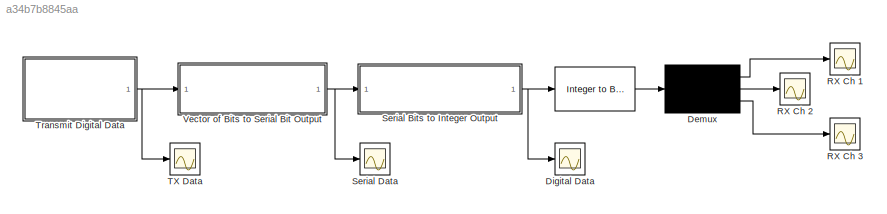
MODEL slx_a34b7b8845aa
KIND model
BLOCK [Reference]    REF=commutil2/Integer to Bit
Converter
  Ports = [1, 1]
  SourceBlock = commutil2/Integer to Bit\nConverter
  SourceType = Integer to Bit Converter
  bitOrder = LSB first
  nbits = 3
  outDtype = Inherit via internal rule
  signedInputValues = Unsigned
BLOCK [Demux] Demux
  Outputs = 3
  Ports = [1, 3]
BLOCK [Scope] Digital Data
  Floating = off
  NumInputPorts = 1
  Ports = [1]
  SaveName = ScopeData6
  ShowLegends = off
BLOCK [Scope] RX Ch 1
  Floating = off
  NumInputPorts = 1
  Ports = [1]
  ShowLegends = off
BLOCK [Scope] RX Ch 2
  Floating = off
  NumInputPorts = 1
  Ports = [1]
  SaveName = ScopeData1
  ShowLegends = off
BLOCK [Scope] RX Ch 3
  Floating = off
  NumInputPorts = 1
  Ports = [1]
  SaveName = ScopeData8
  ShowLegends = off
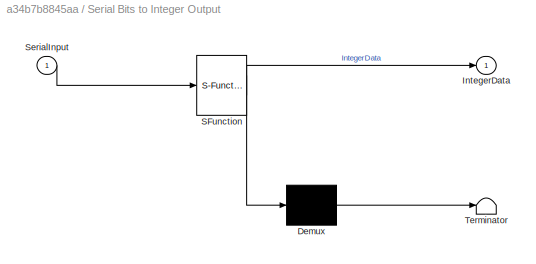
BLOCK [SubSystem] Serial Bits to Integer Output
  ErrorFcn = Stateflow.Translate.translate
  PermitHierarchicalResolution = ExplicitOnly
  Ports = [1, 1]
  RequestExecContextInheritance = off
  SFBlockType = MATLAB Function
  TreatAsAtomicUnit = on
BLOCK [Demux] Serial Bits to Integer Output/ Demux 
  Outputs = 1
  Ports = [1, 1]
BLOCK [S-Function] Serial Bits to Integer Output/ SFunction 
  EnableBusSupport = on
  FunctionName = sf_sfun
  PortCounts = [1 2]
  Ports = [1, 2]
  Tag = Stateflow S-Function Fig53 1
BLOCK [Terminator] Serial Bits to Integer Output/ Terminator 
BLOCK [Outport] Serial Bits to Integer Output/IntegerData
  IconDisplay = Port number
BLOCK [Inport] Serial Bits to Integer Output/SerialInput
  IconDisplay = Port number
BLOCK [Scope] Serial Data
  Floating = off
  NumInputPorts = 1
  Ports = [1]
  SaveName = ScopeData3
  ShowLegends = off
BLOCK [Scope] TX Data
  Floating = off
  NumInputPorts = 1
  Ports = [1]
  SaveName = ScopeData2
  ShowLegends = off
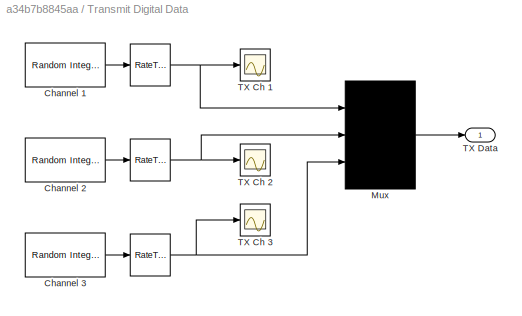
BLOCK [SubSystem] Transmit Digital Data
  Ports = [0, 1]
  RequestExecContextInheritance = off
BLOCK [RateTransition] Transmit Digital Data/ 
  OutPortSampleTime = 1e-3
BLOCK [RateTransition] Transmit Digital Data/  
  OutPortSampleTime = 1e-3
BLOCK [RateTransition] Transmit Digital Data/    
  OutPortSampleTime = 1e-3
BLOCK [Reference] Transmit Digital Data/Channel 1  REF=commrandsrc2/Random Integer
Generator
  Ports = [0, 1]
  SourceBlock = commrandsrc2/Random Integer\nGenerator
  SourceType = Random Integer Generator
  Ts = 4e-3
  frameBased = off
  mul = 2
  orient = on
  outDataType = double
  sampPerFrame = 1
  seed = 37
BLOCK [Reference] Transmit Digital Data/Channel 2  REF=commrandsrc2/Random Integer
Generator
  Ports = [0, 1]
  SourceBlock = commrandsrc2/Random Integer\nGenerator
  SourceType = Random Integer Generator
  Ts = 4e-3
  frameBased = off
  mul = 2
  orient = on
  outDataType = double
  sampPerFrame = 1
  seed = 59
BLOCK [Reference] Transmit Digital Data/Channel 3  REF=commrandsrc2/Random Integer
Generator
  Ports = [0, 1]
  SourceBlock = commrandsrc2/Random Integer\nGenerator
  SourceType = Random Integer Generator
  Ts = 2e-3
  frameBased = off
  mul = 2
  orient = on
  outDataType = double
  sampPerFrame = 1
  seed = 42
BLOCK [Mux] Transmit Digital Data/Mux
  DisplayOption = signals
  Inputs = 3
  Ports = [3, 1]
BLOCK [Scope] Transmit Digital Data/TX Ch 1
  Floating = off
  NumInputPorts = 1
  Ports = [1]
  SaveName = ScopeData4
  ShowLegends = off
BLOCK [Scope] Transmit Digital Data/TX Ch 2
  Floating = off
  NumInputPorts = 1
  Ports = [1]
  SaveName = ScopeData5
  ShowLegends = off
BLOCK [Scope] Transmit Digital Data/TX Ch 3
  Floating = off
  NumInputPorts = 1
  Ports = [1]
  SaveName = ScopeData7
  ShowLegends = off
BLOCK [Outport] Transmit Digital Data/TX Data
  IconDisplay = Port number
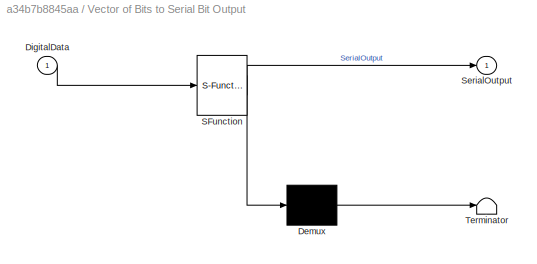
BLOCK [SubSystem] Vector of Bits to Serial Bit Output
  ErrorFcn = Stateflow.Translate.translate
  PermitHierarchicalResolution = ExplicitOnly
  Ports = [1, 1]
  RequestExecContextInheritance = off
  SFBlockType = MATLAB Function
  TreatAsAtomicUnit = on
BLOCK [Demux] Vector of Bits to Serial Bit Output/ Demux 
  Outputs = 1
  Ports = [1, 1]
BLOCK [S-Function] Vector of Bits to Serial Bit Output/ SFunction 
  EnableBusSupport = on
  FunctionName = sf_sfun
  PortCounts = [1 2]
  Ports = [1, 2]
  Tag = Stateflow S-Function Fig53 2
BLOCK [Terminator] Vector of Bits to Serial Bit Output/ Terminator 
BLOCK [Inport] Vector of Bits to Serial Bit Output/DigitalData
  IconDisplay = Port number
BLOCK [Outport] Vector of Bits to Serial Bit Output/SerialOutput
  IconDisplay = Port number
LINE  :1 -> Demux:1
LINE Demux:1 -> RX Ch 1:1
LINE Demux:2 -> RX Ch 2:1
LINE Demux:3 -> RX Ch 3:1
NET Serial Bits to Integer Output:1 ->  :1, Digital Data:1
NET Transmit Digital Data/    :1 -> Transmit Digital Data/Mux:3, Transmit Digital Data/TX Ch 3:1
NET Transmit Digital Data/  :1 -> Transmit Digital Data/Mux:2, Transmit Digital Data/TX Ch 2:1
NET Transmit Digital Data/ :1 -> Transmit Digital Data/Mux:1, Transmit Digital Data/TX Ch 1:1
LINE Transmit Digital Data/Channel 1:1 -> Transmit Digital Data/ :1
LINE Transmit Digital Data/Channel 2:1 -> Transmit Digital Data/  :1
LINE Transmit Digital Data/Channel 3:1 -> Transmit Digital Data/    :1
LINE Transmit Digital Data/Mux:1 -> Transmit Digital Data/TX Data:1
NET Transmit Digital Data:1 -> TX Data:1, Vector of Bits to Serial Bit Output:1
NET Vector of Bits to Serial Bit Output:1 -> Serial Bits to Integer Output:1, Serial Data:1
note: NET lines group one-source signal fan-out (src -> all destinations, sorted); 1:1 wires keep LINE
CHART Serial Bits to
Integer Output states=1 transitions=1
  STATE_LABEL 'eML_blk_kernel()'
  STATE_LABEL 'SCRIPT:\nfunction IntegerData = fcn(SerialInput)\n%#codegen\n\npersistent SmpDat  SmpNum SmpDatOld\n\nif isempty(SmpNum)\n    SmpNum = 0;\n    SmpDat = 0;\n    SmpDatOld = 0;\n    IntegerData = 0; %#ok<*NASGU>\nend\n\nSmpNum = SmpNum + 1;\nID = 0;\nif (SmpNum == 1)\n    SmpDat = SerialInput;\nend\nif (SmpNum == 2)\n    SmpDat = SmpDat + 2*SerialInput;\n    SmpDatOld = SmpDat;\nend\nif (SmpNum == 3)\n    ID = SmpDat + 4*...<+114ch>'
CHART Vector of Bits to
Serial Bit Output states=1 transitions=1
  STATE_LABEL 'eML_blk_kernel()'
  STATE_LABEL 'SCRIPT:\nfunction SerialOutput = fcn(DigitalData)\n%#codegen\npersistent SmpDat SmpNum SmpCh3\n\nif isempty(SmpNum)\n    SmpNum = 0;\n    SmpDat = DigitalData; %#ok<NASGU>\n    SmpCh3 = 0;\n    SerialOutput = 0; %#ok<NASGU>\nend\n\nSmpNum = SmpNum + 1;\nSO = 0;\nSmpDat = DigitalData;\nif (SmpNum == 1)\n    SO = SmpDat(1);\nend\nif (SmpNum == 2)\n    SO = SmpDat(2);\n    SmpCh3 = SmpDat(3);\nend\nif (SmpNum == 3)\n    SO...<+117ch>'
